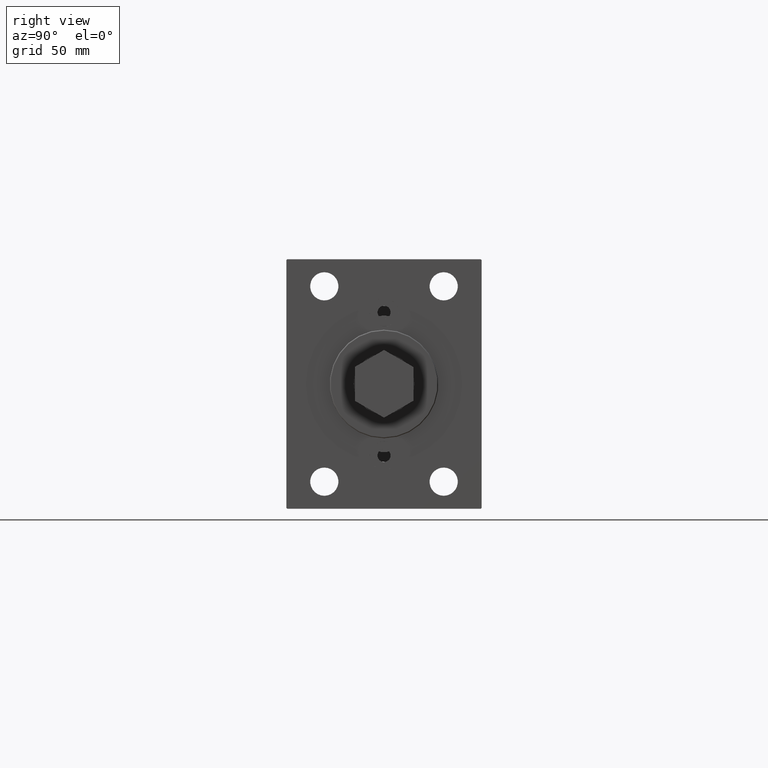
[diagram: clean part render]
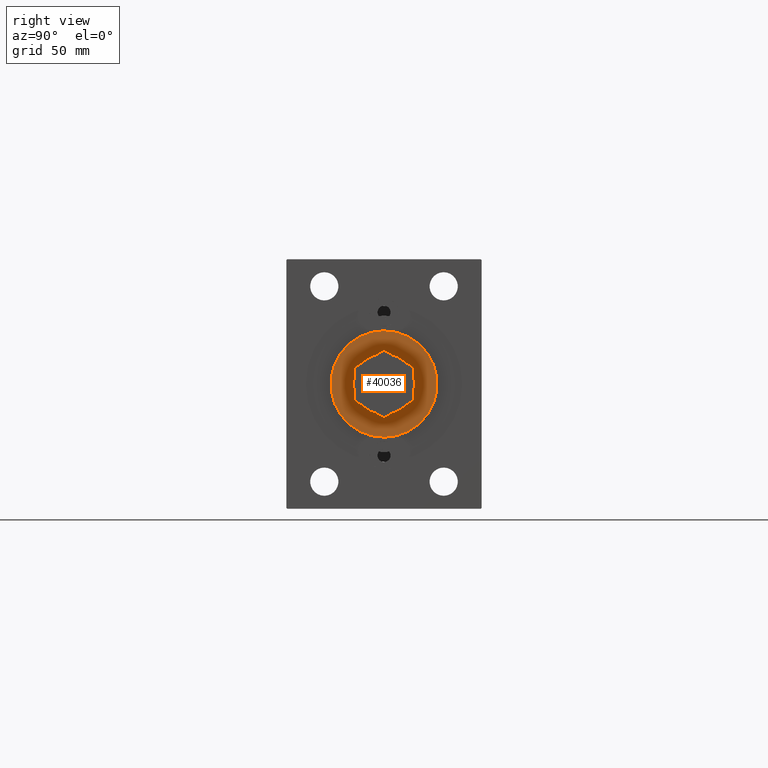
[diagram: same view with one face highlighted and labeled with its STEP entity id]
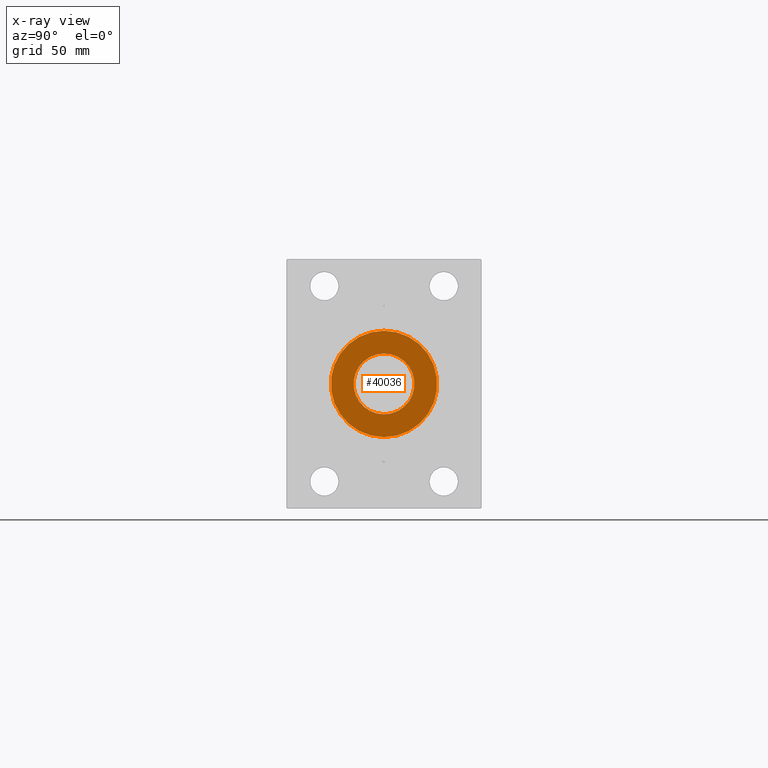
[diagram: x-ray of the same camera — body ghosted, the highlighted face saturated]
A machine part, right view. The second image highlights one B-rep face of the part: STEP entity #40036.
The next image is the same camera in x-ray: the body ghosted, the highlighted face saturated — about 3% of this face is hidden behind the body in this view.
In plain terms, the highlighted planar face has unit normal (1, 0, 0).
Its self-contained STEP definition (entity closure, byte-faithful):
#450 = DIRECTION ( 'NONE',  ( 1.000000000000000000, 0.000000000000000000, 0.000000000000000000 ) ) ;
#1282 = CARTESIAN_POINT ( 'NONE',  ( 122.7000000000000028, 1.714505518806294835E-15, 14.00000000000000178 ) ) ;
#1639 = CARTESIAN_POINT ( 'NONE',  ( 122.7000000000000028, 0.000000000000000000, 0.000000000000000000 ) ) ;
#2462 = CIRCLE ( 'NONE', #11612, 24.50000000000000000 ) ;
#2850 = DIRECTION ( 'NONE',  ( 1.000000000000000000, 0.000000000000000000, 0.000000000000000000 ) ) ;
#3133 = DIRECTION ( 'NONE',  ( 1.000000000000000000, 0.000000000000000000, 0.000000000000000000 ) ) ;
#3487 = CARTESIAN_POINT ( 'NONE',  ( 122.7000000000000028, 3.031000827889699256E-15, 24.50000000000000000 ) ) ;
#4734 = EDGE_CURVE ( 'NONE', #27599, #23766, #37865, .T. ) ;
#5626 = VERTEX_POINT ( 'NONE', #1282 ) ;
#6493 = CARTESIAN_POINT ( 'NONE',  ( 122.7000000000000028, 0.000000000000000000, -14.00000000000000178 ) ) ;
#7737 = AXIS2_PLACEMENT_3D ( 'NONE', #22596, #450, #37145 ) ;
#10447 = EDGE_LOOP ( 'NONE', ( #41537, #21112 ) ) ;
#11065 = DIRECTION ( 'NONE',  ( 0.000000000000000000, 0.000000000000000000, -1.000000000000000000 ) ) ;
#11612 = AXIS2_PLACEMENT_3D ( 'NONE', #20995, #3133, #38878 ) ;
#12698 = EDGE_CURVE ( 'NONE', #24771, #5626, #38101, .T. ) ;
#13145 = EDGE_CURVE ( 'NONE', #5626, #24771, #28240, .T. ) ;
#15549 = CARTESIAN_POINT ( 'NONE',  ( 122.7000000000000028, 0.000000000000000000, -24.50000000000000000 ) ) ;
#16570 = AXIS2_PLACEMENT_3D ( 'NONE', #1639, #38563, #19985 ) ;
#17247 = DIRECTION ( 'NONE',  ( 1.000000000000000000, 0.000000000000000000, 0.000000000000000000 ) ) ;
#19985 = DIRECTION ( 'NONE',  ( 0.000000000000000000, 0.000000000000000000, -1.000000000000000000 ) ) ;
#20127 = ORIENTED_EDGE ( 'NONE', *, *, #40358, .T. ) ;
#20995 = CARTESIAN_POINT ( 'NONE',  ( 122.7000000000000028, 0.000000000000000000, 0.000000000000000000 ) ) ;
#21049 = FACE_BOUND ( 'NONE', #10447, .T. ) ;
#21112 = ORIENTED_EDGE ( 'NONE', *, *, #13145, .F. ) ;
#22596 = CARTESIAN_POINT ( 'NONE',  ( 122.7000000000000028, 0.000000000000000000, 0.000000000000000000 ) ) ;
#23766 = VERTEX_POINT ( 'NONE', #3487 ) ;
#24771 = VERTEX_POINT ( 'NONE', #6493 ) ;
#26704 = AXIS2_PLACEMENT_3D ( 'NONE', #39091, #2850, #36464 ) ;
#27599 = VERTEX_POINT ( 'NONE', #15549 ) ;
#28240 = CIRCLE ( 'NONE', #7737, 14.00000000000000178 ) ;
#28927 = PLANE ( 'NONE',  #29831 ) ;
#29831 = AXIS2_PLACEMENT_3D ( 'NONE', #43448, #17247, #11065 ) ;
#34925 = EDGE_LOOP ( 'NONE', ( #45280, #20127 ) ) ;
#36464 = DIRECTION ( 'NONE',  ( 0.000000000000000000, 0.000000000000000000, -1.000000000000000000 ) ) ;
#37145 = DIRECTION ( 'NONE',  ( 0.000000000000000000, 0.000000000000000000, -1.000000000000000000 ) ) ;
#37865 = CIRCLE ( 'NONE', #16570, 24.50000000000000000 ) ;
#38101 = CIRCLE ( 'NONE', #26704, 14.00000000000000178 ) ;
#38563 = DIRECTION ( 'NONE',  ( 1.000000000000000000, 0.000000000000000000, 0.000000000000000000 ) ) ;
#38878 = DIRECTION ( 'NONE',  ( 0.000000000000000000, 0.000000000000000000, -1.000000000000000000 ) ) ;
#39091 = CARTESIAN_POINT ( 'NONE',  ( 122.7000000000000028, 0.000000000000000000, 0.000000000000000000 ) ) ;
#40036 = ADVANCED_FACE ( 'NONE', ( #21049, #46303 ), #28927, .T. ) ;
#40358 = EDGE_CURVE ( 'NONE', #23766, #27599, #2462, .T. ) ;
#41537 = ORIENTED_EDGE ( 'NONE', *, *, #12698, .F. ) ;
#43448 = CARTESIAN_POINT ( 'NONE',  ( 122.7000000000000028, 0.000000000000000000, 0.000000000000000000 ) ) ;
#45280 = ORIENTED_EDGE ( 'NONE', *, *, #4734, .T. ) ;
#46303 = FACE_OUTER_BOUND ( 'NONE', #34925, .T. ) ;